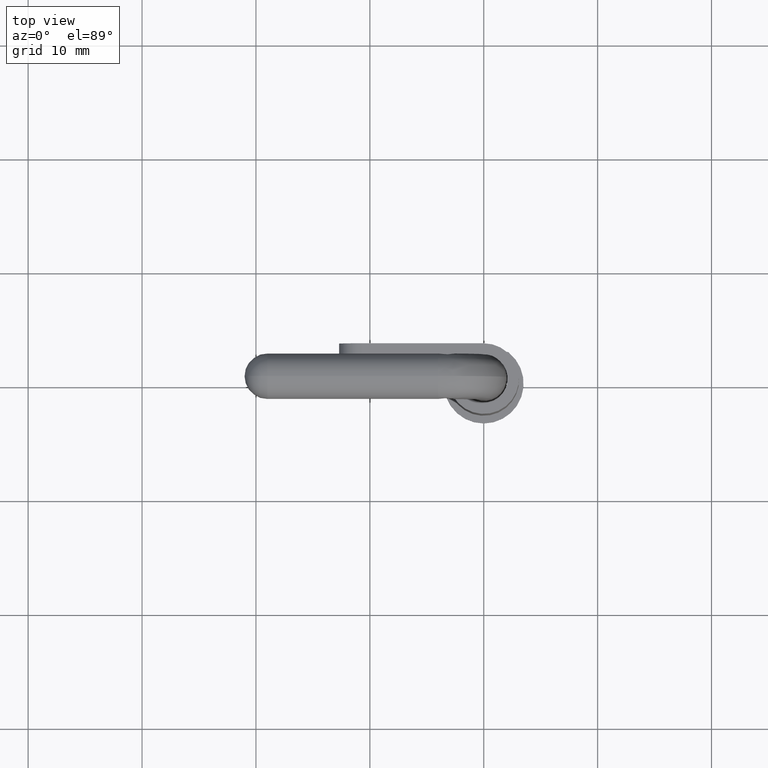
[diagram: clean part render]
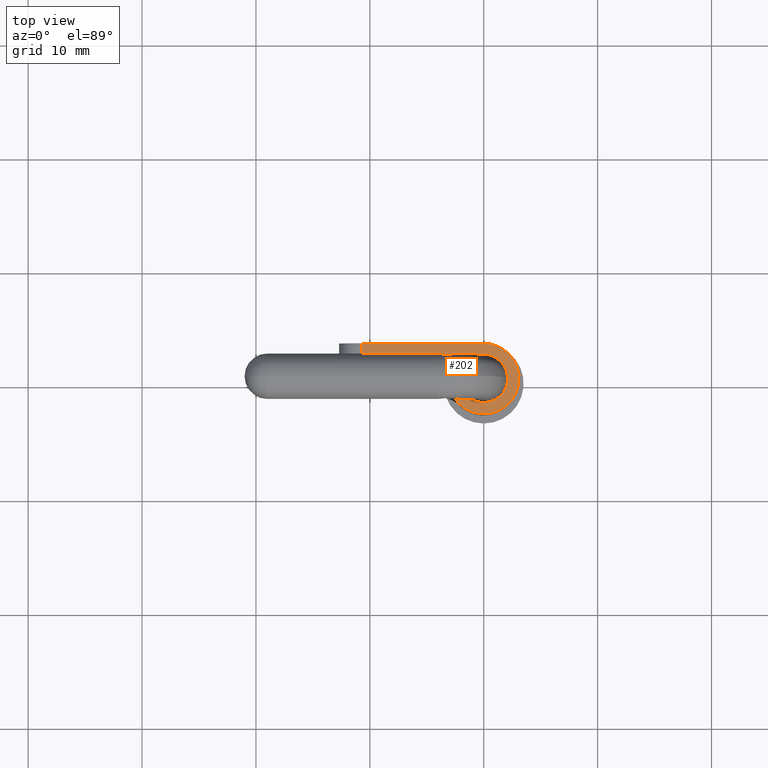
[diagram: same view with one face highlighted and labeled with its STEP entity id]
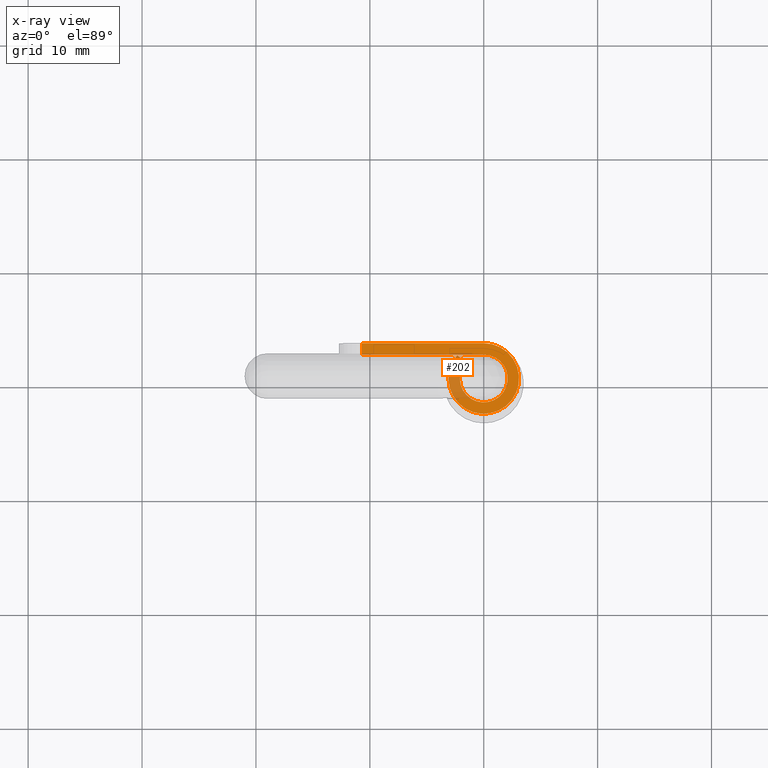
[diagram: x-ray of the same camera — body ghosted, the highlighted face saturated]
A machine part, top view. The second image highlights one B-rep face of the part: STEP entity #202.
The next image is the same camera in x-ray: the body ghosted, the highlighted face saturated — about 19% of this face is hidden behind the body in this view.
In plain terms, the highlighted planar face has unit normal (0, 0, 1).
Its self-contained STEP definition (entity closure, byte-faithful):
#202=ADVANCED_FACE('',(#773),#772,.T.);
#772=PLANE('',#1459);
#773=FACE_OUTER_BOUND('',#1460,.T.);
#1456=CARTESIAN_POINT('',(-1.21653537581E+01,-5.34673477714E+00,3.50000000000E+01));
#1457=DIRECTION('',(0.00000000000E+00,-0.00000000000E+00,1.00000000000E+00));
#1458=DIRECTION('',(1.00000000000E+00,0.00000000000E+00,0.00000000000E+00));
#1459=AXIS2_PLACEMENT_3D('',#1456,#1457,#1458);
#1460=EDGE_LOOP('',(#3395,#3396,#3397,#3398,#3399,#3400));
#3395=ORIENTED_EDGE('',*,*,#3666,.T.);
#3396=ORIENTED_EDGE('',*,*,#3701,.T.);
#3397=ORIENTED_EDGE('',*,*,#3688,.T.);
#3398=ORIENTED_EDGE('',*,*,#3649,.T.);
#3399=ORIENTED_EDGE('',*,*,#3655,.T.);
#3400=ORIENTED_EDGE('',*,*,#3658,.F.);
#3649=EDGE_CURVE('',#4438,#4453,#4460,.T.);
#3655=EDGE_CURVE('',#4453,#4493,#4500,.T.);
#3658=EDGE_CURVE('',#4513,#4493,#4520,.T.);
#3666=EDGE_CURVE('',#4513,#4568,#4575,.T.);
#3688=EDGE_CURVE('',#4723,#4438,#4724,.T.);
#3701=EDGE_CURVE('',#4568,#4723,#4808,.T.);
#4438=VERTEX_POINT('',#5650);
#4453=VERTEX_POINT('',#5660);
#4460=CIRCLE('',#5667,2.09999999995E+00);
#4493=VERTEX_POINT('',#5685);
#4500=LINE('',#5689,#5690);
#4513=VERTEX_POINT('',#5697);
#4520=CIRCLE('',#5704,3.09999999995E+00);
#4568=VERTEX_POINT('',#5732);
#4575=LINE('',#5737,#5738);
#4723=VERTEX_POINT('',#5826);
#4724=LINE('',#5827,#5828);
#4808=LINE('',#5879,#5880);
#5650=CARTESIAN_POINT('',(-5.91171556152E-12,2.09999999995E+00,3.50000000000E+01));
#5660=CARTESIAN_POINT('',(-1.57527312926E+00,1.38870967737E+00,3.50000000000E+01));
#5664=CARTESIAN_POINT('',(0.00000000000E+00,0.00000000000E+00,3.50000000000E+01));
#5665=DIRECTION('',(-0.00000000000E+00,0.00000000000E+00,-1.00000000000E+00));
#5666=DIRECTION('',(-7.50130061570E-01,6.61290322573E-01,0.00000000000E+00));
#5667=AXIS2_PLACEMENT_3D('',#5664,#5665,#5666);
#5685=CARTESIAN_POINT('',(-2.32540319083E+00,2.04999999995E+00,3.50000000000E+01));
#5689=CARTESIAN_POINT('',(-1.57527312926E+00,1.38870967737E+00,3.50000000000E+01));
#5690=VECTOR('',#5691,1.00000000000E+00);
#5691=DIRECTION('',(-7.50130061570E-01,6.61290322573E-01,0.00000000000E+00));
#5697=CARTESIAN_POINT('',(-9.20227552440E-12,3.09999999995E+00,3.50000000000E+01));
#5701=CARTESIAN_POINT('',(0.00000000000E+00,0.00000000000E+00,3.50000000000E+01));
#5702=DIRECTION('',(-0.00000000000E+00,0.00000000000E+00,-1.00000000000E+00));
#5703=DIRECTION('',(-7.50130061570E-01,6.61290322573E-01,0.00000000000E+00));
#5704=AXIS2_PLACEMENT_3D('',#5701,#5702,#5703);
#5732=CARTESIAN_POINT('',(-1.07000000000E+01,3.09999999992E+00,3.50000000000E+01));
#5737=CARTESIAN_POINT('',(-9.20227552440E-12,3.09999999995E+00,3.50000000000E+01));
#5738=VECTOR('',#5739,1.07000000000E+01);
#5739=DIRECTION('',(-1.00000000000E+00,-2.96859110501E-12,0.00000000000E+00));
#5826=CARTESIAN_POINT('',(-1.07000000000E+01,2.09999999992E+00,3.50000000000E+01));
#5827=CARTESIAN_POINT('',(-1.07000000000E+01,2.09999999992E+00,3.50000000000E+01));
#5828=VECTOR('',#5829,1.07000000000E+01);
#5829=DIRECTION('',(1.00000000000E+00,2.96859110501E-12,0.00000000000E+00));
#5879=CARTESIAN_POINT('',(-1.07000000000E+01,3.09999999992E+00,3.50000000000E+01));
#5880=VECTOR('',#5881,1.00000000000E+00);
#5881=DIRECTION('',(2.10320649785E-12,-1.00000000000E+00,0.00000000000E+00));